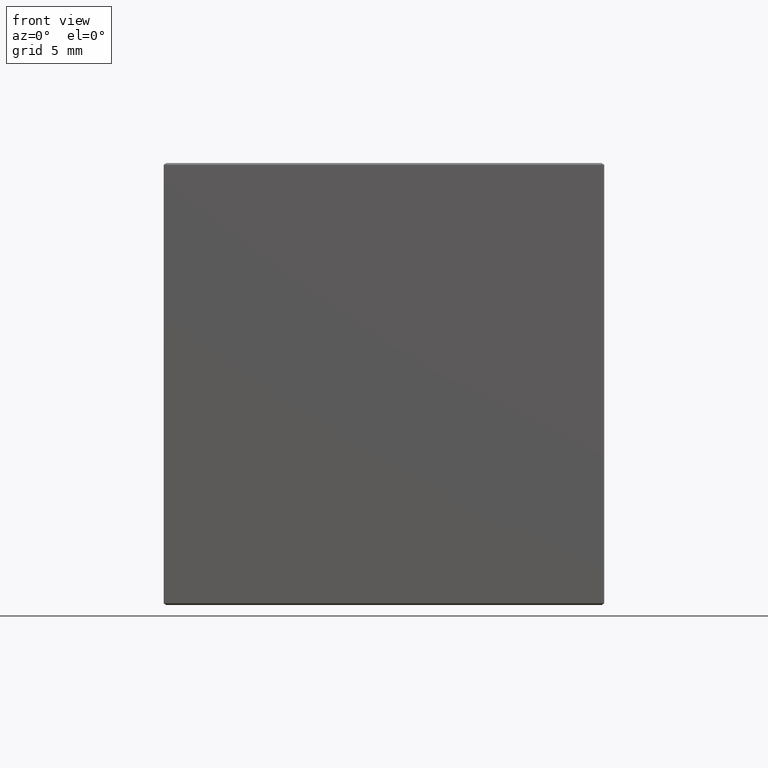
[diagram: clean part render]
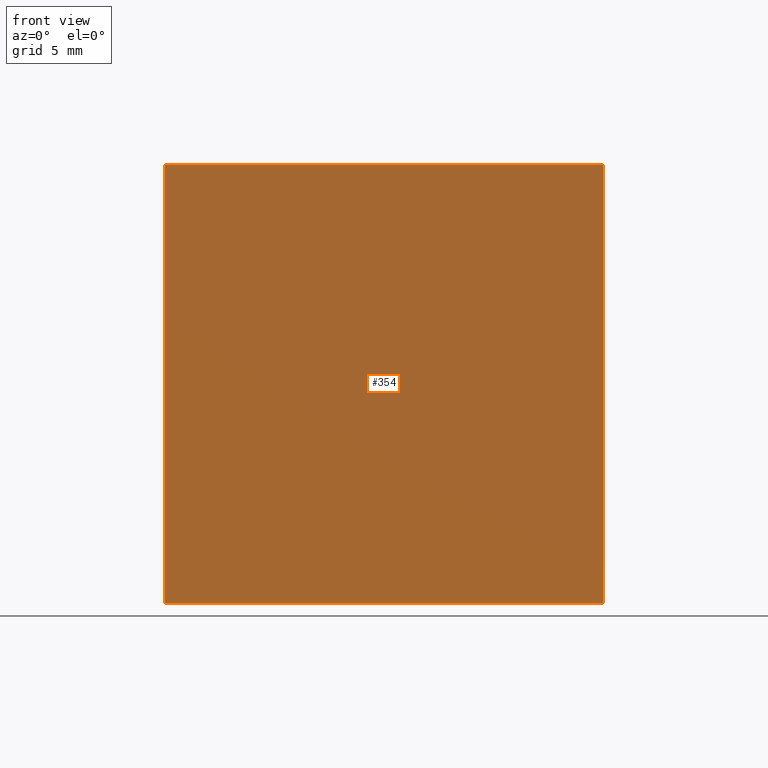
[diagram: same view with one face highlighted and labeled with its STEP entity id]
A machine part, front view. The second image highlights one B-rep face of the part: STEP entity #354.
In plain terms, the highlighted planar face has unit normal (0, 1, 0).
Its self-contained STEP definition (entity closure, byte-faithful):
#2 = EDGE_CURVE ( 'NONE', #295, #421, #143, .T. ) ;
#4 = VECTOR ( 'NONE', #11, 1000.000000000000000 ) ;
#11 = DIRECTION ( 'NONE',  ( -1.000000000000000000, 0.000000000000000000, 0.000000000000000000 ) ) ;
#24 = LINE ( 'NONE', #293, #163 ) ;
#44 = ORIENTED_EDGE ( 'NONE', *, *, #153, .T. ) ;
#48 = DIRECTION ( 'NONE',  ( 1.000000000000000000, 0.000000000000000000, 0.000000000000000000 ) ) ;
#61 = CARTESIAN_POINT ( 'NONE',  ( -12.42679491924310220, -21.65063509461096558, 0.09999999999999592548 ) ) ;
#86 = LINE ( 'NONE', #175, #200 ) ;
#97 = ORIENTED_EDGE ( 'NONE', *, *, #2, .T. ) ;
#104 = PLANE ( 'NONE',  #124 ) ;
#124 = AXIS2_PLACEMENT_3D ( 'NONE', #182, #410, #334 ) ;
#141 = LINE ( 'NONE', #368, #486 ) ;
#143 = LINE ( 'NONE', #253, #4 ) ;
#147 = VERTEX_POINT ( 'NONE', #61 ) ;
#153 = EDGE_CURVE ( 'NONE', #247, #295, #24, .T. ) ;
#163 = VECTOR ( 'NONE', #424, 1000.000000000000000 ) ;
#175 = CARTESIAN_POINT ( 'NONE',  ( -12.42679491924310220, -21.65063509461096558, 25.00000000000000000 ) ) ;
#182 = CARTESIAN_POINT ( 'NONE',  ( -12.50000000000000000, -21.65063509461096558, 25.00000000000000000 ) ) ;
#200 = VECTOR ( 'NONE', #479, 1000.000000000000000 ) ;
#203 = CARTESIAN_POINT ( 'NONE',  ( 12.40000000000000391, -21.65063509461096558, 24.90000000000000213 ) ) ;
#247 = VERTEX_POINT ( 'NONE', #267 ) ;
#253 = CARTESIAN_POINT ( 'NONE',  ( -12.50000000000000000, -21.65063509461096558, 24.90000000000000213 ) ) ;
#267 = CARTESIAN_POINT ( 'NONE',  ( 12.40000000000000391, -21.65063509461096558, 0.09999999999999592548 ) ) ;
#291 = ORIENTED_EDGE ( 'NONE', *, *, #331, .T. ) ;
#293 = CARTESIAN_POINT ( 'NONE',  ( 12.40000000000000391, -21.65063509461096558, 25.00000000000000000 ) ) ;
#295 = VERTEX_POINT ( 'NONE', #203 ) ;
#319 = CARTESIAN_POINT ( 'NONE',  ( -12.42679491924310220, -21.65063509461096558, 24.90000000000000213 ) ) ;
#330 = ORIENTED_EDGE ( 'NONE', *, *, #335, .T. ) ;
#331 = EDGE_CURVE ( 'NONE', #421, #147, #86, .T. ) ;
#334 = DIRECTION ( 'NONE',  ( 0.000000000000000000, -0.000000000000000000, 1.000000000000000000 ) ) ;
#335 = EDGE_CURVE ( 'NONE', #147, #247, #141, .T. ) ;
#354 = ADVANCED_FACE ( 'NONE', ( #450 ), #104, .F. ) ;
#368 = CARTESIAN_POINT ( 'NONE',  ( -12.50000000000000000, -21.65063509461096558, 0.09999999999999592548 ) ) ;
#378 = EDGE_LOOP ( 'NONE', ( #44, #97, #291, #330 ) ) ;
#410 = DIRECTION ( 'NONE',  ( 0.000000000000000000, 1.000000000000000000, 0.000000000000000000 ) ) ;
#421 = VERTEX_POINT ( 'NONE', #319 ) ;
#424 = DIRECTION ( 'NONE',  ( 0.000000000000000000, 0.000000000000000000, 1.000000000000000000 ) ) ;
#450 = FACE_OUTER_BOUND ( 'NONE', #378, .T. ) ;
#479 = DIRECTION ( 'NONE',  ( 0.000000000000000000, 0.000000000000000000, -1.000000000000000000 ) ) ;
#486 = VECTOR ( 'NONE', #48, 1000.000000000000000 ) ;